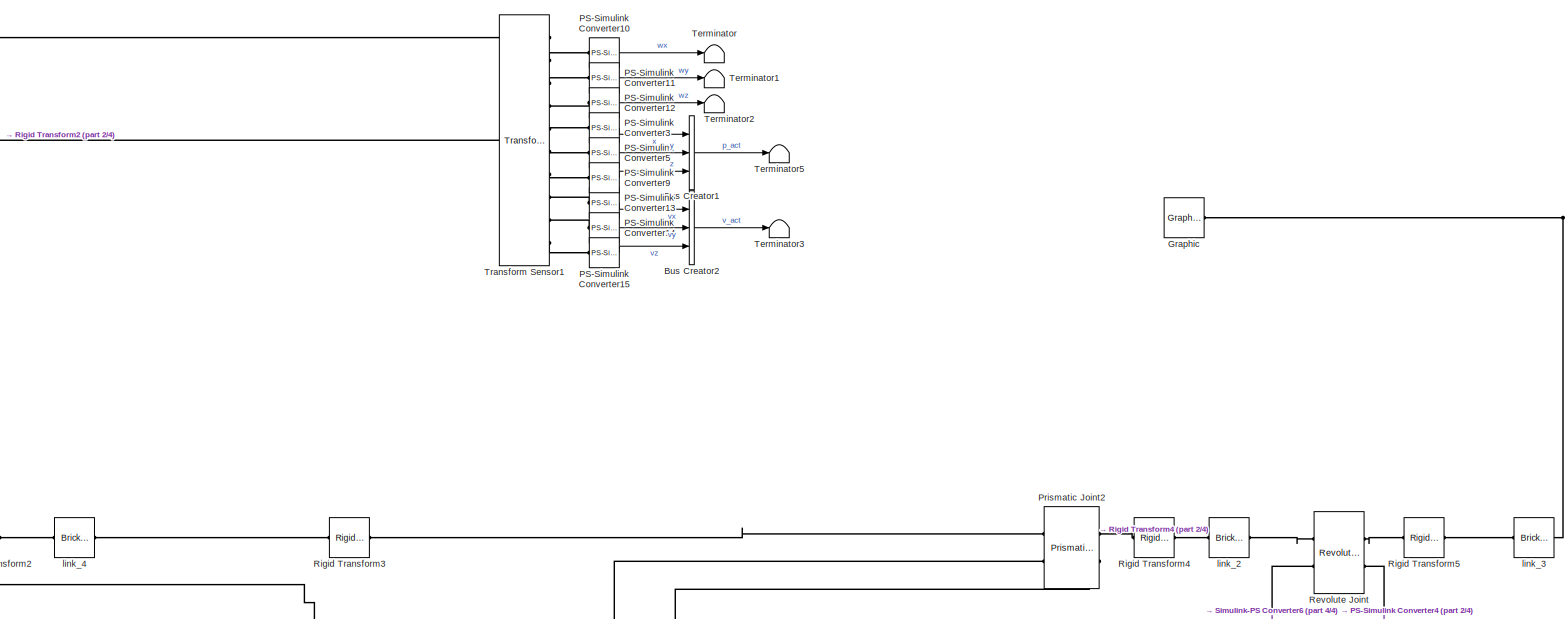
[diagram: root canvas - part 1/4, full width, top band]
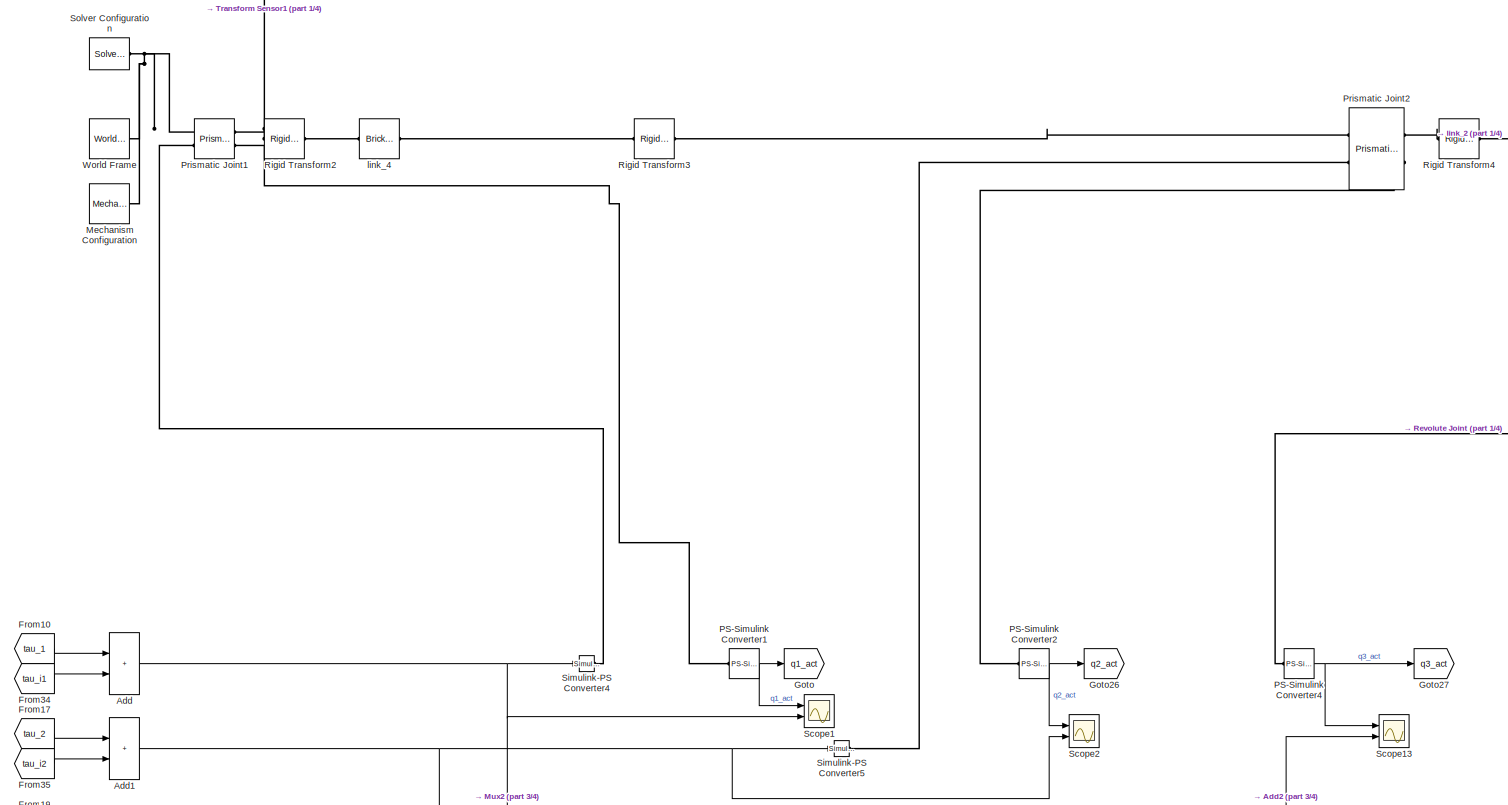
[diagram: root canvas - part 2/4, full width, middle band]
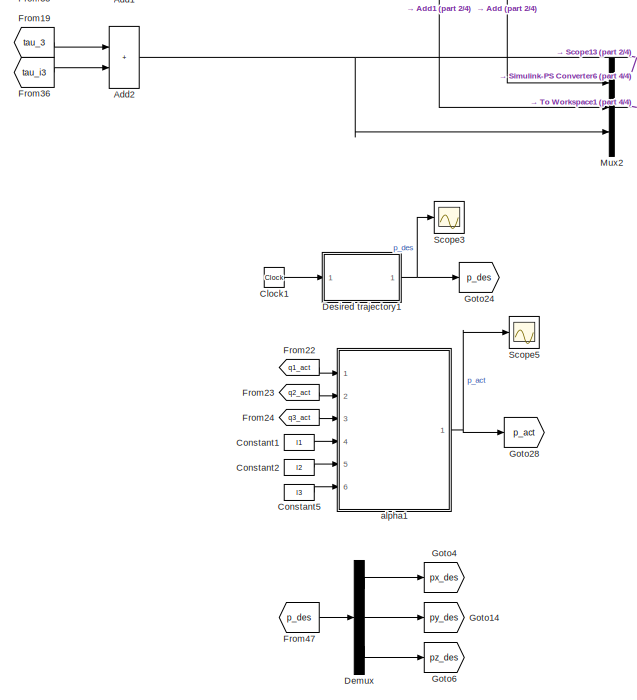
[diagram: root canvas - part 3/4, bottom left region]
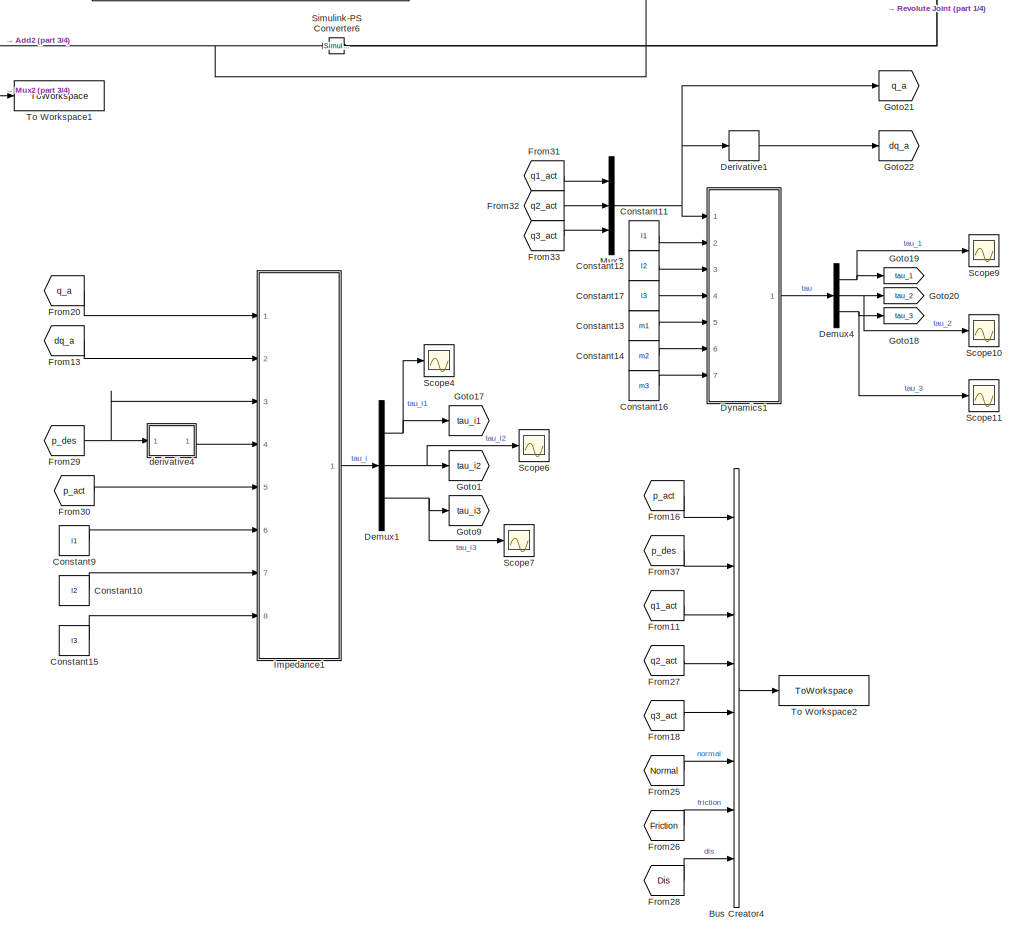
[diagram: root canvas - part 4/4, bottom center region]
MODEL slx_263c3710701d
KIND model
CONFIG AbsTol = auto
CONFIG EnableMultiTasking = on
CONFIG FixedStep = auto
CONFIG MaxStep = auto
CONFIG MinStep = auto
CONFIG RelTol = 1e-3
CONFIG SampleTimeConstraint = Unconstrained
CONFIG SolverName = VariableStepAuto
CONFIG StartTime = 0.0
CONFIG StopTime = StopTime
BLOCK [Sum] Add
  IconShape = rectangular
  Ports = [2, 1]
BLOCK [Sum] Add1
  IconShape = rectangular
  Ports = [2, 1]
BLOCK [Sum] Add2
  IconShape = rectangular
  Ports = [2, 1]
BLOCK [BusCreator] Bus Creator1
  DisplayOption = bar
  InheritFromInputs = on
  Inputs = 3
  Ports = [3, 1]
BLOCK [BusCreator] Bus Creator2
  DisplayOption = bar
  InheritFromInputs = on
  Inputs = 3
  Ports = [3, 1]
BLOCK [BusCreator] Bus Creator4
  DisplayOption = bar
  InheritFromInputs = on
  Inputs = 8
  Ports = [8, 1]
BLOCK [Clock] Clock1
  Decimation = 4
BLOCK [Constant] Constant1
  Value = l1
BLOCK [Constant] Constant10
  Value = l2
BLOCK [Constant] Constant11
  Value = l1
BLOCK [Constant] Constant12
  Value = l2
BLOCK [Constant] Constant13
  Value = m1
BLOCK [Constant] Constant14
  Value = m2
BLOCK [Constant] Constant15
  Value = l3
BLOCK [Constant] Constant16
  Value = m3
BLOCK [Constant] Constant17
  Value = l3
BLOCK [Constant] Constant2
  Value = l2
BLOCK [Constant] Constant5
  Value = l3
BLOCK [Constant] Constant9
  Value = l1
BLOCK [Demux] Demux
  Outputs = 3
  Ports = [1, 3]
BLOCK [Demux] Demux1
  Outputs = 3
  Ports = [1, 3]
BLOCK [Demux] Demux4
  Outputs = 3
  Ports = [1, 3]
BLOCK [Derivative] Derivative1
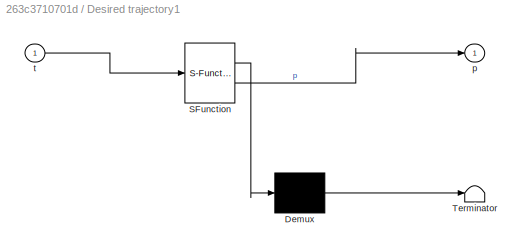
BLOCK [SubSystem] Desired trajectory1
  ErrorFcn = Stateflow.Translate.translate
  PermitHierarchicalResolution = ExplicitOnly
  Ports = [1, 1]
  RequestExecContextInheritance = off
  SFBlockType = MATLAB Function
  TreatAsAtomicUnit = on
BLOCK [Demux] Desired trajectory1/ Demux 
  Outputs = 1
  Ports = [1, 1]
BLOCK [S-Function] Desired trajectory1/ SFunction 
  EnableBusSupport = on
  FunctionName = sf_sfun
  PortCounts = [1 2]
  Ports = [1, 2]
  SFcnIsStateOwnerBlock = off
  SFunctionDeploymentMode = off
  Tag = Stateflow S-Function 1
BLOCK [Terminator] Desired trajectory1/ Terminator 
BLOCK [Outport] Desired trajectory1/p
BLOCK [Inport] Desired trajectory1/t
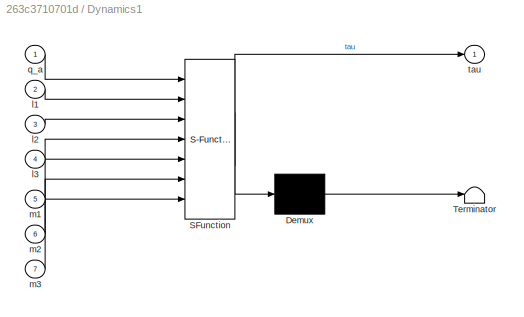
BLOCK [SubSystem] Dynamics1
  ErrorFcn = Stateflow.Translate.translate
  PermitHierarchicalResolution = ExplicitOnly
  Ports = [7, 1]
  RequestExecContextInheritance = off
  SFBlockType = MATLAB Function
  TreatAsAtomicUnit = on
BLOCK [Demux] Dynamics1/ Demux 
  Outputs = 1
  Ports = [1, 1]
BLOCK [S-Function] Dynamics1/ SFunction 
  EnableBusSupport = on
  FunctionName = sf_sfun
  PortCounts = [7 2]
  Ports = [7, 2]
  SFcnIsStateOwnerBlock = off
  SFunctionDeploymentMode = off
  Tag = Stateflow S-Function 2
BLOCK [Terminator] Dynamics1/ Terminator 
BLOCK [Inport] Dynamics1/l1
  Port = 2
BLOCK [Inport] Dynamics1/l2
  Port = 3
BLOCK [Inport] Dynamics1/l3
  Port = 4
BLOCK [Inport] Dynamics1/m1
  Port = 5
BLOCK [Inport] Dynamics1/m2
  Port = 6
BLOCK [Inport] Dynamics1/m3
  Port = 7
BLOCK [Inport] Dynamics1/q_a
BLOCK [Outport] Dynamics1/tau
  VectorParamsAs1DForOutWhenUnconnected = off
BLOCK [From] From10
  GotoTag = tau_1
BLOCK [From] From11
  GotoTag = q1_act
BLOCK [From] From13
  GotoTag = dq_a
BLOCK [From] From16
  GotoTag = p_act
BLOCK [From] From17
  GotoTag = tau_2
BLOCK [From] From18
  GotoTag = q3_act
BLOCK [From] From19
  GotoTag = tau_3
BLOCK [From] From20
  GotoTag = q_a
BLOCK [From] From22
  GotoTag = q1_act
BLOCK [From] From23
  GotoTag = q2_act
BLOCK [From] From24
  GotoTag = q3_act
BLOCK [From] From25
  GotoTag = Normal
BLOCK [From] From26
  GotoTag = Friction
BLOCK [From] From27
  GotoTag = q2_act
BLOCK [From] From28
  GotoTag = Dis
BLOCK [From] From29
  GotoTag = p_des
BLOCK [From] From30
  GotoTag = p_act
BLOCK [From] From31
  GotoTag = q1_act
BLOCK [From] From32
  GotoTag = q2_act
BLOCK [From] From33
  GotoTag = q3_act
BLOCK [From] From34
  GotoTag = tau_i1
BLOCK [From] From35
  GotoTag = tau_i2
BLOCK [From] From36
  GotoTag = tau_i3
BLOCK [From] From37
  GotoTag = p_des
BLOCK [From] From47
  GotoTag = p_des
BLOCK [Goto] Goto
  GotoTag = q1_act
BLOCK [Goto] Goto1
  GotoTag = tau_i2
BLOCK [Goto] Goto14
  GotoTag = py_des
BLOCK [Goto] Goto17
  GotoTag = tau_i1
BLOCK [Goto] Goto18
  GotoTag = tau_3
BLOCK [Goto] Goto19
  GotoTag = tau_1
BLOCK [Goto] Goto20
  GotoTag = tau_2
BLOCK [Goto] Goto21
  GotoTag = q_a
BLOCK [Goto] Goto22
  GotoTag = dq_a
BLOCK [Goto] Goto24
  GotoTag = p_des
BLOCK [Goto] Goto26
  GotoTag = q2_act
BLOCK [Goto] Goto27
  GotoTag = q3_act
BLOCK [Goto] Goto28
  GotoTag = p_act
BLOCK [Goto] Goto4
  GotoTag = px_des
BLOCK [Goto] Goto6
  GotoTag = pz_des
BLOCK [Goto] Goto9
  GotoTag = tau_i3
BLOCK [Reference] Graphic  REF=sm_lib/Body Elements/Graphic
  Ports = [0, 0, 0, 0, 0, 0, 1]
  SourceBlock = sm_lib/Body Elements/Graphic
  SourceProductBaseCode = MS
  SourceType = Graphic
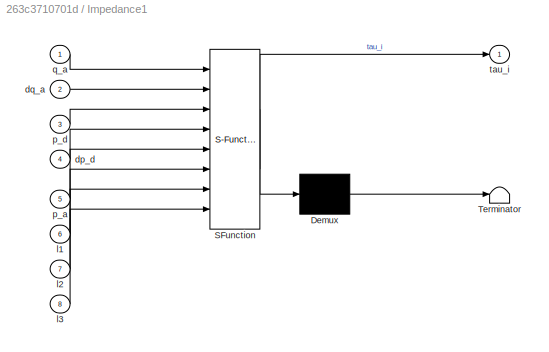
BLOCK [SubSystem] Impedance1
  ErrorFcn = Stateflow.Translate.translate
  PermitHierarchicalResolution = ExplicitOnly
  Ports = [8, 1]
  RequestExecContextInheritance = off
  SFBlockType = MATLAB Function
  TreatAsAtomicUnit = on
BLOCK [Demux] Impedance1/ Demux 
  Outputs = 1
  Ports = [1, 1]
BLOCK [S-Function] Impedance1/ SFunction 
  EnableBusSupport = on
  FunctionName = sf_sfun
  PortCounts = [8 2]
  Ports = [8, 2]
  SFcnIsStateOwnerBlock = off
  SFunctionDeploymentMode = off
  Tag = Stateflow S-Function 7
BLOCK [Terminator] Impedance1/ Terminator 
BLOCK [Inport] Impedance1/dp_d
  Port = 4
BLOCK [Inport] Impedance1/dq_a
  Port = 2
BLOCK [Inport] Impedance1/l1
  Port = 6
BLOCK [Inport] Impedance1/l2
  Port = 7
BLOCK [Inport] Impedance1/l3
  Port = 8
BLOCK [Inport] Impedance1/p_a
  Port = 5
BLOCK [Inport] Impedance1/p_d
  Port = 3
BLOCK [Inport] Impedance1/q_a
BLOCK [Outport] Impedance1/tau_i
  VectorParamsAs1DForOutWhenUnconnected = off
BLOCK [Reference] Mechanism Configuration  REF=sm_lib/Utilities/Mechanism
Configuration
  Ports = [0, 0, 0, 0, 0, 0, 1]
  SourceBlock = sm_lib/Utilities/Mechanism\nConfiguration
  SourceProductBaseCode = MS
  SourceType = Mechanism\nConfiguration
BLOCK [Mux] Mux2
  DisplayOption = bar
  Inputs = 3
  Ports = [3, 1]
BLOCK [Mux] Mux3
  DisplayOption = bar
  Inputs = 3
  Ports = [3, 1]
BLOCK [Reference] PS-Simulink Converter1  REF=nesl_utility/PS-Simulink
Converter
  Ports = [0, 1, 0, 0, 0, 1]
  SourceBlock = nesl_utility/PS-Simulink\nConverter
  SourceProductBaseCode = PW,SS
  SourceType = PS-Simulink\nConverter
BLOCK [Reference] PS-Simulink Converter10  REF=nesl_utility/PS-Simulink
Converter
  Ports = [0, 1, 0, 0, 0, 1]
  SourceBlock = nesl_utility/PS-Simulink\nConverter
  SourceProductBaseCode = PW,SS
  SourceType = PS-Simulink\nConverter
BLOCK [Reference] PS-Simulink Converter11  REF=nesl_utility/PS-Simulink
Converter
  Ports = [0, 1, 0, 0, 0, 1]
  SourceBlock = nesl_utility/PS-Simulink\nConverter
  SourceProductBaseCode = PW,SS
  SourceType = PS-Simulink\nConverter
BLOCK [Reference] PS-Simulink Converter12  REF=nesl_utility/PS-Simulink
Converter
  Ports = [0, 1, 0, 0, 0, 1]
  SourceBlock = nesl_utility/PS-Simulink\nConverter
  SourceProductBaseCode = PW,SS
  SourceType = PS-Simulink\nConverter
BLOCK [Reference] PS-Simulink Converter13  REF=nesl_utility/PS-Simulink
Converter
  Ports = [0, 1, 0, 0, 0, 1]
  SourceBlock = nesl_utility/PS-Simulink\nConverter
  SourceProductBaseCode = PW,SS
  SourceType = PS-Simulink\nConverter
BLOCK [Reference] PS-Simulink Converter14  REF=nesl_utility/PS-Simulink
Converter
  Ports = [0, 1, 0, 0, 0, 1]
  SourceBlock = nesl_utility/PS-Simulink\nConverter
  SourceProductBaseCode = PW,SS
  SourceType = PS-Simulink\nConverter
BLOCK [Reference] PS-Simulink Converter15  REF=nesl_utility/PS-Simulink
Converter
  Ports = [0, 1, 0, 0, 0, 1]
  SourceBlock = nesl_utility/PS-Simulink\nConverter
  SourceProductBaseCode = PW,SS
  SourceType = PS-Simulink\nConverter
BLOCK [Reference] PS-Simulink Converter2  REF=nesl_utility/PS-Simulink
Converter
  Ports = [0, 1, 0, 0, 0, 1]
  SourceBlock = nesl_utility/PS-Simulink\nConverter
  SourceProductBaseCode = PW,SS
  SourceType = PS-Simulink\nConverter
BLOCK [Reference] PS-Simulink Converter3  REF=nesl_utility/PS-Simulink
Converter
  Ports = [0, 1, 0, 0, 0, 1]
  SourceBlock = nesl_utility/PS-Simulink\nConverter
  SourceProductBaseCode = PW,SS
  SourceType = PS-Simulink\nConverter
BLOCK [Reference] PS-Simulink Converter4  REF=nesl_utility/PS-Simulink
Converter
  Ports = [0, 1, 0, 0, 0, 1]
  SourceBlock = nesl_utility/PS-Simulink\nConverter
  SourceProductBaseCode = PW,SS
  SourceType = PS-Simulink\nConverter
BLOCK [Reference] PS-Simulink Converter5  REF=nesl_utility/PS-Simulink
Converter
  Ports = [0, 1, 0, 0, 0, 1]
  SourceBlock = nesl_utility/PS-Simulink\nConverter
  SourceProductBaseCode = PW,SS
  SourceType = PS-Simulink\nConverter
BLOCK [Reference] PS-Simulink Converter9  REF=nesl_utility/PS-Simulink
Converter
  Ports = [0, 1, 0, 0, 0, 1]
  SourceBlock = nesl_utility/PS-Simulink\nConverter
  SourceProductBaseCode = PW,SS
  SourceType = PS-Simulink\nConverter
BLOCK [Reference] Prismatic Joint1  REF=sm_lib/Joints/Prismatic
Joint
  Ports = [0, 0, 0, 0, 0, 2, 2]
  SourceBlock = sm_lib/Joints/Prismatic\nJoint
  SourceProductBaseCode = MS
  SourceType = Prismatic\nJoint
BLOCK [Reference] Prismatic Joint2  REF=sm_lib/Joints/Prismatic
Joint
  Ports = [0, 0, 0, 0, 0, 2, 2]
  SourceBlock = sm_lib/Joints/Prismatic\nJoint
  SourceProductBaseCode = MS
  SourceType = Prismatic\nJoint
BLOCK [Reference] Revolute Joint  REF=sm_lib/Joints/Revolute Joint
  Ports = [0, 0, 0, 0, 0, 2, 2]
  SourceBlock = sm_lib/Joints/Revolute Joint
  SourceProductBaseCode = MS
  SourceType = Revolute Joint
BLOCK [Reference] Rigid Transform2  REF=sm_lib/Frames and
Transforms/Rigid
Transform
  Ports = [0, 0, 0, 0, 0, 1, 1]
  SourceBlock = sm_lib/Frames and\nTransforms/Rigid\nTransform
  SourceProductBaseCode = MS
  SourceType = Rigid\nTransform
BLOCK [Reference] Rigid Transform3  REF=sm_lib/Frames and
Transforms/Rigid
Transform
  Ports = [0, 0, 0, 0, 0, 1, 1]
  SourceBlock = sm_lib/Frames and\nTransforms/Rigid\nTransform
  SourceProductBaseCode = MS
  SourceType = Rigid\nTransform
BLOCK [Reference] Rigid Transform4  REF=sm_lib/Frames and
Transforms/Rigid
Transform
  Ports = [0, 0, 0, 0, 0, 1, 1]
  SourceBlock = sm_lib/Frames and\nTransforms/Rigid\nTransform
  SourceProductBaseCode = MS
  SourceType = Rigid\nTransform
BLOCK [Reference] Rigid Transform5  REF=sm_lib/Frames and
Transforms/Rigid
Transform
  Ports = [0, 0, 0, 0, 0, 1, 1]
  SourceBlock = sm_lib/Frames and\nTransforms/Rigid\nTransform
  SourceProductBaseCode = MS
  SourceType = Rigid\nTransform
BLOCK [Scope] Scope1
  Floating = off
  NumInputPorts = 2
  Ports = [2]
  ScopeSpecificationString = Simulink.scopes.TimeScopeBlockCfg('CurrentConfiguration', extmgr.ConfigurationSet(extmgr.Configuration('Core','General UI',true),extmgr.Configuration('Core','Source UI',true),extmgr.Configuration('Sources','WiredSimulink',true,'DataLoggingVariableName','ScopeData1'),extmgr.Configuration('Visuals','Time Domain',true,'SerializedDisplays',{struct('MinYLimReal','-0.23145','MaxYLimReal','0.02785','YLab...<+2107ch>
BLOCK [Scope] Scope10
  Floating = off
  NumInputPorts = 1
  Ports = [1]
  ScopeSpecificationString = Simulink.scopes.TimeScopeBlockCfg('CurrentConfiguration', extmgr.ConfigurationSet(extmgr.Configuration('Core','General UI',true),extmgr.Configuration('Core','Source UI',true),extmgr.Configuration('Sources','WiredSimulink',true,'DataLoggingVariableName','ScopeData2'),extmgr.Configuration('Visuals','Time Domain',true,'SerializedDisplays',{struct('MinYLimReal','-1.00000','MaxYLimReal','1.00000','YLab...<+1466ch>
BLOCK [Scope] Scope11
  Floating = off
  NumInputPorts = 1
  Ports = [1]
  ScopeSpecificationString = Simulink.scopes.TimeScopeBlockCfg('CurrentConfiguration', extmgr.ConfigurationSet(extmgr.Configuration('Core','General UI',true),extmgr.Configuration('Core','Source UI',true),extmgr.Configuration('Sources','WiredSimulink',true,'DataLoggingVariableName','ScopeData3'),extmgr.Configuration('Visuals','Time Domain',true,'SerializedDisplays',{struct('MinYLimReal','-1.00000','MaxYLimReal','1.00000','YLab...<+1466ch>
BLOCK [Scope] Scope13
  Floating = off
  NumInputPorts = 2
  Ports = [2]
  ScopeSpecificationString = Simulink.scopes.TimeScopeBlockCfg('CurrentConfiguration', extmgr.ConfigurationSet(extmgr.Configuration('Core','General UI',true),extmgr.Configuration('Core','Source UI',true),extmgr.Configuration('Sources','WiredSimulink',true,'DataLoggingVariableName','ScopeData4'),extmgr.Configuration('Visuals','Time Domain',true,'SerializedDisplays',{struct('MinYLimReal','-1.58133','MaxYLimReal','0.19029','YLab...<+2142ch>
BLOCK [Scope] Scope2
  Floating = off
  NumInputPorts = 2
  Ports = [2]
  ScopeSpecificationString = Simulink.scopes.TimeScopeBlockCfg('CurrentConfiguration', extmgr.ConfigurationSet(extmgr.Configuration('Core','General UI',true),extmgr.Configuration('Core','Source UI',true),extmgr.Configuration('Sources','WiredSimulink',true,'DataLoggingVariableName','ScopeData5'),extmgr.Configuration('Visuals','Time Domain',true,'SerializedDisplays',{struct('MinYLimReal','-5.17414','MaxYLimReal','1.20198','YLab...<+2498ch>
BLOCK [Scope] Scope3
  Floating = off
  NumInputPorts = 1
  Ports = [1]
  ScopeSpecificationString = Simulink.scopes.TimeScopeBlockCfg('CurrentConfiguration', extmgr.ConfigurationSet(extmgr.Configuration('Core','General UI',true),extmgr.Configuration('Core','Source UI',true),extmgr.Configuration('Sources','WiredSimulink',true,'DataLoggingVariableName','ScopeData6'),extmgr.Configuration('Visuals','Time Domain',true,'SerializedDisplays',{struct('MinYLimReal','-0.125','MaxYLimReal','1.125','YLabelRe...<+1472ch>
BLOCK [Scope] Scope4
  Floating = off
  NumInputPorts = 1
  Ports = [1]
  ScopeSpecificationString = Simulink.scopes.TimeScopeBlockCfg('CurrentConfiguration', extmgr.ConfigurationSet(extmgr.Configuration('Core','General UI',true),extmgr.Configuration('Core','Source UI',true),extmgr.Configuration('Sources','WiredSimulink',true,'DataLoggingVariableName','ScopeData7'),extmgr.Configuration('Visuals','Time Domain',true,'SerializedDisplays',{struct('MinYLimReal','-994.76606','MaxYLimReal','3201.63234',...<+1485ch>
BLOCK [Scope] Scope5
  Floating = off
  NumInputPorts = 1
  Ports = [1]
  ScopeSpecificationString = Simulink.scopes.TimeScopeBlockCfg('CurrentConfiguration', extmgr.ConfigurationSet(extmgr.Configuration('Core','General UI',true),extmgr.Configuration('Core','Source UI',true),extmgr.Configuration('Sources','WiredSimulink',true,'DataLoggingVariableName','ScopeData8'),extmgr.Configuration('Visuals','Time Domain',true,'SerializedDisplays',{struct('MinYLimReal','-0.125','MaxYLimReal','1.125','YLabelRe...<+1472ch>
BLOCK [Scope] Scope6
  Floating = off
  NumInputPorts = 1
  Ports = [1]
  ScopeSpecificationString = Simulink.scopes.TimeScopeBlockCfg('CurrentConfiguration', extmgr.ConfigurationSet(extmgr.Configuration('Core','General UI',true),extmgr.Configuration('Core','Source UI',true),extmgr.Configuration('Sources','WiredSimulink',true,'DataLoggingVariableName','ScopeData9'),extmgr.Configuration('Visuals','Time Domain',true,'SerializedDisplays',{struct('MinYLimReal','-452.04408','MaxYLimReal','1454.89379',...<+1485ch>
BLOCK [Scope] Scope7
  Floating = off
  NumInputPorts = 1
  Ports = [1]
  ScopeSpecificationString = Simulink.scopes.TimeScopeBlockCfg('CurrentConfiguration', extmgr.ConfigurationSet(extmgr.Configuration('Core','General UI',true),extmgr.Configuration('Core','Source UI',true),extmgr.Configuration('Sources','WiredSimulink',true,'DataLoggingVariableName','ScopeData10'),extmgr.Configuration('Visuals','Time Domain',true,'SerializedDisplays',{struct('MinYLimReal','-1243.39031','MaxYLimReal','4001.82392...<+1490ch>
BLOCK [Scope] Scope9
  Floating = off
  NumInputPorts = 1
  Ports = [1]
  ScopeSpecificationString = Simulink.scopes.TimeScopeBlockCfg('CurrentConfiguration', extmgr.ConfigurationSet(extmgr.Configuration('Core','General UI',true),extmgr.Configuration('Core','Source UI',true),extmgr.Configuration('Sources','WiredSimulink',true,'DataLoggingVariableName','ScopeData11'),extmgr.Configuration('Visuals','Time Domain',true,'SerializedDisplays',{struct('MinYLimReal','-1.00000','MaxYLimReal','1.00000','YLa...<+1467ch>
BLOCK [Reference] Simulink-PS Converter4  REF=nesl_utility/Simulink-PS
Converter
  Ports = [1, 0, 0, 0, 0, 0, 1]
  SourceBlock = nesl_utility/Simulink-PS\nConverter
  SourceProductBaseCode = PW,SS
  SourceType = Simulink-PS\nConverter
BLOCK [Reference] Simulink-PS Converter5  REF=nesl_utility/Simulink-PS
Converter
  Ports = [1, 0, 0, 0, 0, 0, 1]
  SourceBlock = nesl_utility/Simulink-PS\nConverter
  SourceProductBaseCode = PW,SS
  SourceType = Simulink-PS\nConverter
BLOCK [Reference] Simulink-PS Converter6  REF=nesl_utility/Simulink-PS
Converter
  Ports = [1, 0, 0, 0, 0, 0, 1]
  SourceBlock = nesl_utility/Simulink-PS\nConverter
  SourceProductBaseCode = PW,SS
  SourceType = Simulink-PS\nConverter
BLOCK [Reference] Solver Configuration  REF=nesl_utility/Solver
Configuration
  Ports = [0, 0, 0, 0, 0, 0, 1]
  SourceBlock = nesl_utility/Solver\nConfiguration
  SourceProductBaseCode = PW,SS
  SourceType = Solver\nConfiguration
BLOCK [Terminator] Terminator
BLOCK [Terminator] Terminator1
BLOCK [Terminator] Terminator2
BLOCK [Terminator] Terminator3
BLOCK [Terminator] Terminator5
BLOCK [ToWorkspace] To Workspace1
  FixptAsFi = on
  MaxDataPoints = inf
  Ports = [1]
  SampleTime = -1
  SaveFormat = Timeseries
  VariableName = tau
BLOCK [ToWorkspace] To Workspace2
  FixptAsFi = on
  MaxDataPoints = inf
  Ports = [1]
  SampleTime = -1
  SaveFormat = Timeseries
  VariableName = position
BLOCK [Reference] Transform Sensor1  REF=sm_lib/Frames and
Transforms/Transform
Sensor
  Ports = [0, 0, 0, 0, 0, 1, 10]
  SourceBlock = sm_lib/Frames and\nTransforms/Transform\nSensor
  SourceProductBaseCode = MS
  SourceType = Transform\nSensor
BLOCK [Reference] World Frame  REF=sm_lib/Frames and
Transforms/World Frame
  Ports = [0, 0, 0, 0, 0, 0, 1]
  SourceBlock = sm_lib/Frames and\nTransforms/World Frame
  SourceProductBaseCode = MS
  SourceType = World Frame
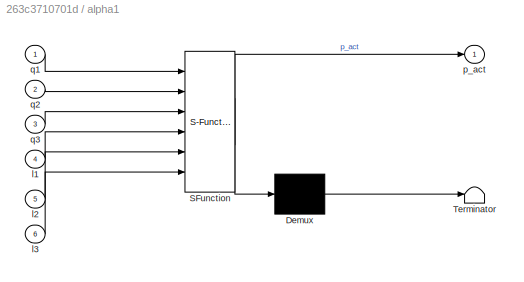
BLOCK [SubSystem] alpha1
  ErrorFcn = Stateflow.Translate.translate
  PermitHierarchicalResolution = ExplicitOnly
  Ports = [6, 1]
  RequestExecContextInheritance = off
  SFBlockType = MATLAB Function
  TreatAsAtomicUnit = on
BLOCK [Demux] alpha1/ Demux 
  Outputs = 1
  Ports = [1, 1]
BLOCK [S-Function] alpha1/ SFunction 
  EnableBusSupport = on
  FunctionName = sf_sfun
  PortCounts = [6 2]
  Ports = [6, 2]
  SFcnIsStateOwnerBlock = off
  SFunctionDeploymentMode = off
  Tag = Stateflow S-Function 4
BLOCK [Terminator] alpha1/ Terminator 
BLOCK [Inport] alpha1/l1
  Port = 4
BLOCK [Inport] alpha1/l2
  Port = 5
BLOCK [Inport] alpha1/l3
  Port = 6
BLOCK [Outport] alpha1/p_act
BLOCK [Inport] alpha1/q1
BLOCK [Inport] alpha1/q2
  Port = 2
BLOCK [Inport] alpha1/q3
  Port = 3
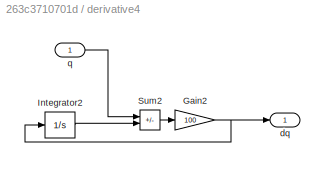
BLOCK [SubSystem] derivative4
  Ports = [1, 1]
  RequestExecContextInheritance = off
BLOCK [Gain] derivative4/Gain2
  Gain = 100
BLOCK [Integrator] derivative4/Integrator2
  Ports = [1, 1]
BLOCK [Sum] derivative4/Sum2
  IconShape = rectangular
  Inputs = +-
  Ports = [2, 1]
BLOCK [Outport] derivative4/dq
BLOCK [Inport] derivative4/q
BLOCK [Reference] link_2  REF=sm_lib/Body Elements/Brick Solid
  Ports = [0, 0, 0, 0, 0, 1, 1]
  SourceBlock = sm_lib/Body Elements/Brick Solid
  SourceProductBaseCode = MS
  SourceType = Brick Solid
BLOCK [Reference] link_3  REF=sm_lib/Body Elements/Brick Solid
  Ports = [0, 0, 0, 0, 0, 1, 1]
  SourceBlock = sm_lib/Body Elements/Brick Solid
  SourceProductBaseCode = MS
  SourceType = Brick Solid
BLOCK [Reference] link_4  REF=sm_lib/Body Elements/Brick Solid
  Ports = [0, 0, 0, 0, 0, 1, 1]
  SourceBlock = sm_lib/Body Elements/Brick Solid
  SourceProductBaseCode = MS
  SourceType = Brick Solid
NET Add1:1 -> Mux2:2, Scope2:2, Simulink-PS Converter5:1
NET Add2:1 -> Mux2:3, Scope13:2, Simulink-PS Converter6:1
NET Add:1 -> Mux2:1, Scope1:2, Simulink-PS Converter4:1
LINE Bus Creator1:1 -> Terminator5:1
LINE Bus Creator2:1 -> Terminator3:1
LINE Bus Creator4:1 -> To Workspace2:1
LINE Clock1:1 -> Desired trajectory1:1
LINE Constant10:1 -> Impedance1:7
LINE Constant11:1 -> Dynamics1:2
LINE Constant12:1 -> Dynamics1:3
LINE Constant13:1 -> Dynamics1:5
LINE Constant14:1 -> Dynamics1:6
LINE Constant15:1 -> Impedance1:8
LINE Constant16:1 -> Dynamics1:7
LINE Constant17:1 -> Dynamics1:4
LINE Constant1:1 -> alpha1:4
LINE Constant2:1 -> alpha1:5
LINE Constant5:1 -> alpha1:6
LINE Constant9:1 -> Impedance1:6
NET Demux1:1 -> Goto17:1, Scope4:1
NET Demux1:2 -> Goto1:1, Scope6:1
NET Demux1:3 -> Goto9:1, Scope7:1
NET Demux4:1 -> Goto19:1, Scope9:1
NET Demux4:2 -> Goto20:1, Scope10:1
NET Demux4:3 -> Goto18:1, Scope11:1
LINE Demux:1 -> Goto4:1
LINE Demux:2 -> Goto14:1
LINE Demux:3 -> Goto6:1
LINE Derivative1:1 -> Goto22:1
NET Desired trajectory1:1 -> Goto24:1, Scope3:1
LINE Dynamics1:1 -> Demux4:1
LINE From10:1 -> Add:1
LINE From11:1 -> Bus Creator4:3
LINE From13:1 -> Impedance1:2
LINE From16:1 -> Bus Creator4:1
LINE From17:1 -> Add1:1
LINE From18:1 -> Bus Creator4:5
LINE From19:1 -> Add2:1
LINE From20:1 -> Impedance1:1
LINE From22:1 -> alpha1:1
LINE From23:1 -> alpha1:2
LINE From24:1 -> alpha1:3
LINE From25:1 -> Bus Creator4:6
LINE From26:1 -> Bus Creator4:7
LINE From27:1 -> Bus Creator4:4
LINE From28:1 -> Bus Creator4:8
NET From29:1 -> Impedance1:3, derivative4:1
LINE From30:1 -> Impedance1:5
LINE From31:1 -> Mux3:1
LINE From32:1 -> Mux3:2
LINE From33:1 -> Mux3:3
LINE From34:1 -> Add:2
LINE From35:1 -> Add1:2
LINE From36:1 -> Add2:2
LINE From37:1 -> Bus Creator4:2
LINE From47:1 -> Demux:1
LINE Impedance1:1 -> Demux1:1
LINE Mux2:1 -> To Workspace1:1
NET Mux3:1 -> Derivative1:1, Dynamics1:1, Goto21:1
LINE PS-Simulink Converter10:1 -> Terminator:1
LINE PS-Simulink Converter11:1 -> Terminator1:1
LINE PS-Simulink Converter12:1 -> Terminator2:1
LINE PS-Simulink Converter13:1 -> Bus Creator2:1
LINE PS-Simulink Converter14:1 -> Bus Creator2:2
LINE PS-Simulink Converter15:1 -> Bus Creator2:3
NET PS-Simulink Converter1:1 -> Goto:1, Scope1:1
NET PS-Simulink Converter2:1 -> Goto26:1, Scope2:1
LINE PS-Simulink Converter3:1 -> Bus Creator1:1
NET PS-Simulink Converter4:1 -> Goto27:1, Scope13:1
LINE PS-Simulink Converter5:1 -> Bus Creator1:2
LINE PS-Simulink Converter9:1 -> Bus Creator1:3
NET alpha1:1 -> Goto28:1, Scope5:1
NET derivative4/Gain2:1 -> derivative4/Integrator2:1, derivative4/dq:1
LINE derivative4/Integrator2:1 -> derivative4/Sum2:2
LINE derivative4/Sum2:1 -> derivative4/Gain2:1
LINE derivative4/q:1 -> derivative4/Sum2:1
LINE derivative4:1 -> Impedance1:4
PNET net1: Graphic:RConn1 -- Transform Sensor1:RConn1 -- link_3:RConn1
PNET net2: Mechanism Configuration:RConn1 -- Prismatic Joint1:LConn1 -- Solver Configuration:RConn1 -- World Frame:RConn1
PLINE PS-Simulink Converter10:LConn1 -- Transform Sensor1:RConn2
PLINE PS-Simulink Converter11:LConn1 -- Transform Sensor1:RConn3
PLINE PS-Simulink Converter12:LConn1 -- Transform Sensor1:RConn4
PLINE PS-Simulink Converter13:LConn1 -- Transform Sensor1:RConn8
PLINE PS-Simulink Converter14:LConn1 -- Transform Sensor1:RConn9
PLINE PS-Simulink Converter15:LConn1 -- Transform Sensor1:RConn10
PLINE PS-Simulink Converter1:LConn1 -- Prismatic Joint1:RConn2
PLINE PS-Simulink Converter2:LConn1 -- Prismatic Joint2:RConn2
PLINE PS-Simulink Converter3:LConn1 -- Transform Sensor1:RConn5
PLINE PS-Simulink Converter4:LConn1 -- Revolute Joint:RConn2
PLINE PS-Simulink Converter5:LConn1 -- Transform Sensor1:RConn6
PLINE PS-Simulink Converter9:LConn1 -- Transform Sensor1:RConn7
PLINE Prismatic Joint1:LConn2 -- Simulink-PS Converter4:RConn1
PNET net3: Prismatic Joint1:RConn1 -- Rigid Transform2:LConn1 -- Transform Sensor1:LConn1
PLINE Prismatic Joint2:LConn1 -- Rigid Transform3:RConn1
PLINE Prismatic Joint2:LConn2 -- Simulink-PS Converter5:RConn1
PLINE Prismatic Joint2:RConn1 -- Rigid Transform4:LConn1
PLINE Revolute Joint:LConn1 -- link_2:RConn1
PLINE Revolute Joint:LConn2 -- Simulink-PS Converter6:RConn1
PLINE Revolute Joint:RConn1 -- Rigid Transform5:LConn1
PLINE Rigid Transform2:RConn1 -- link_4:LConn1
PLINE Rigid Transform3:LConn1 -- link_4:RConn1
PLINE Rigid Transform4:RConn1 -- link_2:LConn1
PLINE Rigid Transform5:RConn1 -- link_3:LConn1
note: NET lines group one-source signal fan-out (src -> all destinations, sorted); 1:1 wires keep LINE; PNET lines group multi-terminal physical nets as a canonical sorted terminal list (undirected conserving connections); 2-terminal nets keep the pairwise PLINE form
CHART Desired trajectory1 states=1 transitions=1
  STATE_LABEL 'eML_blk_kernel()'
  STATE_LABEL 'SCRIPT:\nfunction p = fcn(t)\n% p = [0.2*sin(1*t)+0.3;...\n%      0.2*cos(1*t)+0.3;...\n%      0.2*cos(1*t)+0.6];\np = [abs(0.9*sin(0.5*t))+0.2;...\n      0;...\n      0];\n'
CHART Dynamics1 states=1 transitions=1
  STATE_LABEL 'eML_blk_kernel()'
  STATE_LABEL 'SCRIPT:\nfunction tau = fcn(q_a,l1,l2,l3,m1,m2,m3)\nq1 = [1 0 0]*q_a;\nq2 = [1 0 0]*q_a;\nq3 = [1 0 0]*q_a;\ng=9.80665;%gravitation\n\nN=[0;...\n   0;...\n   0]; % gravity compensation\n\ntau = N;'
CHART alpha1 states=1 transitions=1
  STATE_LABEL 'eML_blk_kernel()'
  STATE_LABEL 'SCRIPT:\nfunction p_act = fcn(q1,q2,q3,l1,l2,l3)\n% p_act = [l1*cos(q1)+l2*cos(q1+q2); l1*sin(q1)+l2*sin(q1+q2)];\n% qt=q1+q2+q3;\n% q1=0.3697*qt;\n% q2=0.1680*qt;\n% q3=0.4621*qt;\np_act=[q1+q2+q3+(l1+l2+l3)/2;\n                0;\n                0];\n'
CHART Impedance1 states=1 transitions=1
  STATE_LABEL 'eML_blk_kernel()'
  STATE_LABEL "SCRIPT:\nfunction tau_i = fcn(q_a, dq_a, p_d, dp_d, p_a, l1, l2,l3)\nq1 = [1 0 0]*q_a;\nq2 = [0 1 0]*q_a;\nq3 = [0 0 1]*q_a;\nv1 = [1 0 0]*dq_a;\nv2 = [0 1 0]*dq_a;\nv3 = [0 0 1]*dq_a;\n% control parameters\n% K=600; D=100; \n% K=500; D=100;\nK=2500; D=500;\n% Jacobian\nJ=[0.3697 0.1680 0.4621;...\n   0 0 0;...\n   0 0 0];\n\nv=J*dq_a;% linear velicity of end-effector\n\nF=K*(p_d-p_a)+D*(dp_d-v); % force\n tau_i=J.'*...<+21ch>"
CHART  states=0 transitions=0
CHART  states=0 transitions=0
CHART  states=0 transitions=0
CHART  states=0 transitions=0
